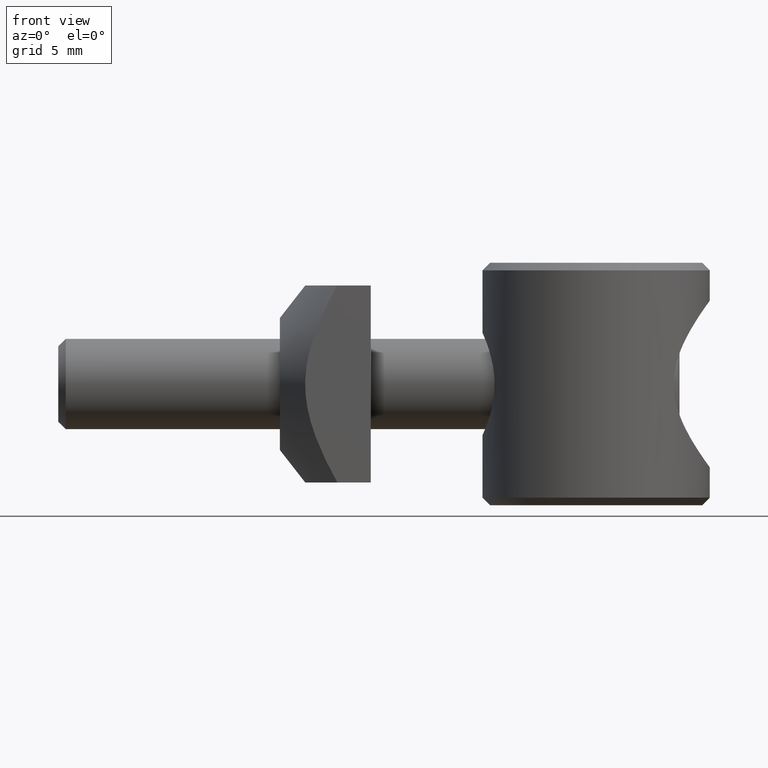
[diagram: clean part render]
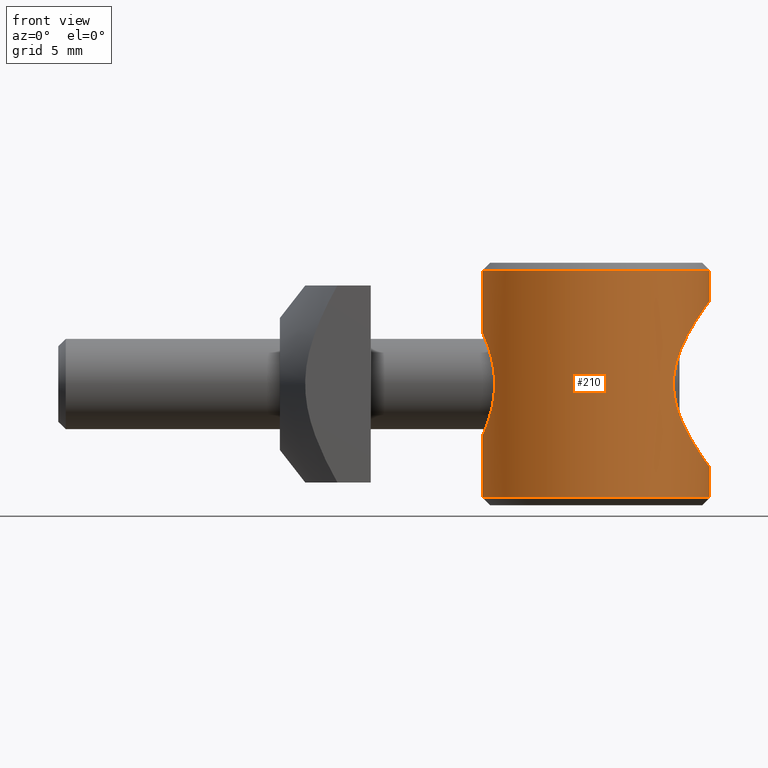
[diagram: same view with one face highlighted and labeled with its STEP entity id]
A machine part, front view. The second image highlights one B-rep face of the part: STEP entity #210.
In plain terms, the highlighted cylindrical surface (bore or boss wall) has radius 7.5 mm, axis along (0, -0, -1).
Its self-contained STEP definition (entity closure, byte-faithful):
#30=CARTESIAN_POINT('',(7.499999999969987,0.0,0.499999999998181));
#31=VERTEX_POINT('',#30);
#38=CARTESIAN_POINT('',(-7.499999999969987,0.0,0.499999999998181));
#39=VERTEX_POINT('',#38);
#40=CARTESIAN_POINT('',(0.0,0.0,0.499999999998181));
#41=DIRECTION('',(0.0,-6.123234E-017,-1.0));
#42=DIRECTION('',(1.0,0.0,0.0));
#43=AXIS2_PLACEMENT_3D('',#40,#41,#42);
#44=CIRCLE('',#43,7.499999999969987);
#45=EDGE_CURVE('',#31,#39,#44,.T.);
#47=CARTESIAN_POINT('',(0.0,0.0,0.499999999998181));
#48=DIRECTION('',(0.0,-6.123234E-017,-1.0));
#49=DIRECTION('',(1.0,0.0,0.0));
#50=AXIS2_PLACEMENT_3D('',#47,#48,#49);
#51=CIRCLE('',#50,7.499999999969987);
#52=EDGE_CURVE('',#39,#31,#51,.T.);
#74=CARTESIAN_POINT('',(0.0,0.0,0.499999999998181));
#75=DIRECTION('',(0.0,-6.123234E-017,-1.0));
#76=DIRECTION('',(1.0,0.0,0.0));
#77=AXIS2_PLACEMENT_3D('',#74,#75,#76);
#78=CYLINDRICAL_SURFACE('',#77,7.499999999969987);
#79=CARTESIAN_POINT('',(7.499999999969987,0.0,2.499999999990450));
#80=VERTEX_POINT('',#79);
#81=CARTESIAN_POINT('',(7.499999999969987,4.538289E-013,0.499999999998181));
#82=DIRECTION('',(0.0,0.0,1.0));
#83=VECTOR('',#82,1.999999999992269);
#84=LINE('',#81,#83);
#85=EDGE_CURVE('',#31,#80,#84,.T.);
#86=ORIENTED_EDGE('',*,*,#85,.T.);
#87=CARTESIAN_POINT('',(7.499999999969987,4.547474E-013,13.499999999945885));
#88=VERTEX_POINT('',#87);
#89=CARTESIAN_POINT('',(7.499999999969987,0.0,13.499999999945885));
#90=CARTESIAN_POINT('',(7.499999999969987,-0.187235908891580,13.499999999945885));
#91=CARTESIAN_POINT('',(7.482318753180607,-0.658062693658849,13.475907831847053));
#92=CARTESIAN_POINT('',(7.383592300483997,-1.401587189841393,13.340808267023021));
#93=CARTESIAN_POINT('',(7.184150381241580,-2.204382105711829,13.062681818257261));
#94=CARTESIAN_POINT('',(6.889814804196703,-3.004844032174333,12.638228145589437));
#95=CARTESIAN_POINT('',(6.503314138706173,-3.769166404371390,12.048509684587316));
#96=CARTESIAN_POINT('',(5.998734376666107,-4.532632487986575,11.193829623452075));
#97=CARTESIAN_POINT('',(5.504999607842365,-5.106869368244134,10.169439394810524));
#98=CARTESIAN_POINT('',(5.163247851778579,-5.441825369808157,9.014727429491359));
#99=CARTESIAN_POINT('',(5.061392866754886,-5.534225111557134,7.925359238446163));
#100=CARTESIAN_POINT('',(5.196070737490118,-5.411412632272004,6.825386722086023));
#101=CARTESIAN_POINT('',(5.559409688521555,-5.048788684413012,5.707295535908088));
#102=CARTESIAN_POINT('',(6.070100531007483,-4.437756150622590,4.673451869731707));
#103=CARTESIAN_POINT('',(6.645278585985579,-3.539782545652543,3.721383316711581));
#104=CARTESIAN_POINT('',(7.142909849373154,-2.417789766112037,2.992261969466199));
#105=CARTESIAN_POINT('',(7.441589650903552,-1.168517132548914,2.579340847030380));
#106=CARTESIAN_POINT('',(7.499999999969987,-0.353388568259561,2.499999999990450));
#107=CARTESIAN_POINT('',(7.499999999969987,0.0,2.499999999990450));
#108=B_SPLINE_CURVE_WITH_KNOTS('',3,(#89,#90,#91,#92,#93,#94,#95,#96,#97,#98,#99,#100,#101,#102,#103,#104,#105,#106,#107),.UNSPECIFIED.,.F.,.U.,(4,1,1,1,1,1,1,1,1,1,1,1,1,1,1,1,4),(0.0,0.562058006759199,1.411747737096331,2.276739218720677,3.169853864779821,4.260053581389174,5.383623289509268,6.913566546391490,8.052062323482849,9.105246721995343,10.175057685871481,11.364022147298819,12.768548674373111,14.065752031374407,15.632801490503576,17.011669284472173,18.074299974627817),.UNSPECIFIED.);
#109=EDGE_CURVE('',#88,#80,#108,.T.);
#110=ORIENTED_EDGE('',*,*,#109,.F.);
#111=CARTESIAN_POINT('',(7.499999999969987,4.547474E-013,15.499999999938154));
#112=VERTEX_POINT('',#111);
#113=CARTESIAN_POINT('',(7.499999999969987,4.546249E-013,13.499999999945885));
#114=DIRECTION('',(0.0,0.0,1.0));
#115=VECTOR('',#114,1.999999999992269);
#116=LINE('',#113,#115);
#117=EDGE_CURVE('',#88,#112,#116,.T.);
#118=ORIENTED_EDGE('',*,*,#117,.T.);
#119=CARTESIAN_POINT('',(-7.499999999969987,4.547474E-013,15.499999999938154));
#120=VERTEX_POINT('',#119);
#121=CARTESIAN_POINT('',(0.0,4.547474E-013,15.499999999938154));
#122=DIRECTION('',(0.0,-6.123234E-017,-1.0));
#123=DIRECTION('',(1.0,0.0,0.0));
#124=AXIS2_PLACEMENT_3D('',#121,#122,#123);
#125=CIRCLE('',#124,7.499999999969987);
#126=EDGE_CURVE('',#112,#120,#125,.T.);
#127=ORIENTED_EDGE('',*,*,#126,.T.);
#128=CARTESIAN_POINT('',(0.0,4.547474E-013,15.499999999938154));
#129=DIRECTION('',(0.0,-6.123234E-017,-1.0));
#130=DIRECTION('',(1.0,0.0,0.0));
#131=AXIS2_PLACEMENT_3D('',#128,#129,#130);
#132=CIRCLE('',#131,7.499999999969987);
#133=EDGE_CURVE('',#120,#112,#132,.T.);
#134=ORIENTED_EDGE('',*,*,#133,.T.);
#135=ORIENTED_EDGE('',*,*,#117,.F.);
#136=CARTESIAN_POINT('',(7.499999999969987,4.547474E-013,2.499999999990450));
#137=CARTESIAN_POINT('',(7.499999999969987,0.353388568260470,2.499999999990450));
#138=CARTESIAN_POINT('',(7.441589650902188,1.168517132550278,2.579340847031290));
#139=CARTESIAN_POINT('',(7.142909849373609,2.417789766114311,2.992261969467108));
#140=CARTESIAN_POINT('',(6.645278585986489,3.539782545653452,3.721383316712945));
#141=CARTESIAN_POINT('',(6.070100531007483,4.437756150623500,4.673451869731707));
#142=CARTESIAN_POINT('',(5.559409688520645,5.048788684413921,5.707295535907633));
#143=CARTESIAN_POINT('',(5.196070737491027,5.411412632272459,6.825386722086932));
#144=CARTESIAN_POINT('',(5.061392866754432,5.534225111557589,7.925359238446617));
#145=CARTESIAN_POINT('',(5.163247851778579,5.441825369808157,9.014727429492723));
#146=CARTESIAN_POINT('',(5.504999607842365,5.106869368244134,10.169439394809160));
#147=CARTESIAN_POINT('',(5.998734376666107,4.532632487987485,11.193829623451620));
#148=CARTESIAN_POINT('',(6.503314138705719,3.769166404371390,12.048509684585497));
#149=CARTESIAN_POINT('',(6.889814804196249,3.004844032174788,12.638228145589437));
#150=CARTESIAN_POINT('',(7.184150381242034,2.204382105712284,13.062681818256806));
#151=CARTESIAN_POINT('',(7.383592300482633,1.401587189841848,13.340808267020748));
#152=CARTESIAN_POINT('',(7.482318753180152,0.658062693659303,13.475907831846598));
#153=CARTESIAN_POINT('',(7.499999999969987,0.187235908892035,13.499999999945885));
#154=CARTESIAN_POINT('',(7.499999999969987,4.547474E-013,13.499999999945885));
#155=B_SPLINE_CURVE_WITH_KNOTS('',3,(#136,#137,#138,#139,#140,#141,#142,#143,#144,#145,#146,#147,#148,#149,#150,#151,#152,#153,#154),.UNSPECIFIED.,.F.,.U.,(4,1,1,1,1,1,1,1,1,1,1,1,1,1,1,1,4),(0.0,1.062630690157268,2.441498484126401,4.008547943254942,5.305751300252759,6.710277827330080,7.899242288757689,8.969053252632898,10.022237651144387,11.160733428236464,12.690676685118545,13.814246393238646,14.904446109847905,15.797560755907053,16.662552237531397,17.512241967868533,18.074299974627731),.UNSPECIFIED.);
#156=EDGE_CURVE('',#80,#88,#155,.T.);
#157=ORIENTED_EDGE('',*,*,#156,.F.);
#158=ORIENTED_EDGE('',*,*,#85,.F.);
#159=ORIENTED_EDGE('',*,*,#52,.F.);
#160=ORIENTED_EDGE('',*,*,#45,.F.);
#161=EDGE_LOOP('',(#86,#110,#118,#127,#134,#135,#157,#158,#159,#160));
#162=FACE_OUTER_BOUND('',#161,.T.);
#163=CARTESIAN_POINT('',(-7.500004034824312,-0.000009830409620,11.375004232024919));
#164=VERTEX_POINT('',#163);
#165=CARTESIAN_POINT('',(-7.499999999969987,0.0,4.624999999981810));
#166=VERTEX_POINT('',#165);
#167=CARTESIAN_POINT('',(-7.500004034824312,-0.000009830409620,11.375004232024919));
#168=CARTESIAN_POINT('',(-7.499996954178084,0.182922617668260,11.374997728981587));
#169=CARTESIAN_POINT('',(-7.483974439159502,0.617732914771559,11.339534224241930));
#170=CARTESIAN_POINT('',(-7.397287023552508,1.312304319171290,11.143773990371756));
#171=CARTESIAN_POINT('',(-7.246232150248034,1.967680013087829,10.775896413706960));
#172=CARTESIAN_POINT('',(-7.059955079850624,2.550914364645450,10.252534419774747));
#173=CARTESIAN_POINT('',(-6.894683089756654,2.959591070215993,9.677083388149185));
#174=CARTESIAN_POINT('',(-6.754124821874939,3.263913988072545,8.959617985196474));
#175=CARTESIAN_POINT('',(-6.682375778411824,3.404908591972344,8.199586775118860));
#176=CARTESIAN_POINT('',(-6.710465094853589,3.350660313681601,7.411477005658981));
#177=CARTESIAN_POINT('',(-6.817499315563964,3.130782303382603,6.666454159739715));
#178=CARTESIAN_POINT('',(-6.984915770263342,2.749049898211069,5.982206497675634));
#179=CARTESIAN_POINT('',(-7.165276072321376,2.239484215650009,5.443482752513319));
#180=CARTESIAN_POINT('',(-7.341004373359738,1.587018722308585,4.987116675941252));
#181=CARTESIAN_POINT('',(-7.468323876882550,0.861311250045674,4.694798965915652));
#182=CARTESIAN_POINT('',(-7.499999999969987,0.258212718835694,4.624999999981810));
#183=CARTESIAN_POINT('',(-7.499999999969987,0.0,4.624999999981810));
#184=B_SPLINE_CURVE_WITH_KNOTS('',3,(#167,#168,#169,#170,#171,#172,#173,#174,#175,#176,#177,#178,#179,#180,#181,#182,#183),.UNSPECIFIED.,.F.,.U.,(4,1,1,1,1,1,1,1,1,1,1,1,1,1,4),(10.750887607616978,11.299702742959315,12.055199760812989,12.915942652718872,13.581101343585223,14.461235249042391,15.073666456791329,15.946740671227875,16.766791629261977,17.423042190743306,18.286433819751505,19.151540690839255,19.695860525094588,20.725134766499117,21.501775215233955),.UNSPECIFIED.);
#185=EDGE_CURVE('',#164,#166,#184,.T.);
#186=ORIENTED_EDGE('',*,*,#185,.F.);
#187=CARTESIAN_POINT('',(-7.499999999969987,0.0,4.624999999981810));
#188=CARTESIAN_POINT('',(-7.499999999969987,-0.191441366937852,4.624999999981810));
#189=CARTESIAN_POINT('',(-7.482803262329981,-0.636614330367138,4.663038677968416));
#190=CARTESIAN_POINT('',(-7.398041153126087,-1.295560530432795,4.854734312496476));
#191=CARTESIAN_POINT('',(-7.247595695749624,-1.966267858605079,5.221380110364407));
#192=CARTESIAN_POINT('',(-7.060760735828808,-2.550575625800775,5.740369681458560));
#193=CARTESIAN_POINT('',(-6.883633086062673,-2.985152609438046,6.368759925857830));
#194=CARTESIAN_POINT('',(-6.749347175757066,-3.273230221682752,7.073896885804516));
#195=CARTESIAN_POINT('',(-6.684460526063049,-3.400904615686159,7.815003195248664));
#196=CARTESIAN_POINT('',(-6.709157930019956,-3.353032118607189,8.562746192392751));
#197=CARTESIAN_POINT('',(-6.804449308249332,-3.158148884731872,9.255887208667900));
#198=CARTESIAN_POINT('',(-6.953250770222439,-2.823277604710711,9.900908838696978));
#199=CARTESIAN_POINT('',(-7.124471659443771,-2.364244219045304,10.442082346459301));
#200=CARTESIAN_POINT('',(-7.303036751742184,-1.750897082495158,10.920041423029488));
#201=CARTESIAN_POINT('',(-7.448984985723655,-1.013420323685750,11.262497396940034));
#202=CARTESIAN_POINT('',(-7.497509413026310,-0.368384364777568,11.369460870009346));
#203=CARTESIAN_POINT('',(-7.500005494013519,-0.037708798148709,11.375005572180935));
#204=CARTESIAN_POINT('',(-7.500004034824312,-0.000009830409620,11.375004232024919));
#205=B_SPLINE_CURVE_WITH_KNOTS('',3,(#187,#188,#189,#190,#191,#192,#193,#194,#195,#196,#197,#198,#199,#200,#201,#202,#203,#204),.UNSPECIFIED.,.F.,.U.,(4,1,1,1,1,1,1,1,1,1,1,1,1,1,1,4),(0.0,0.575144356157960,1.334137133689136,2.060392775512152,2.898695223727640,3.728164465776419,4.396973427001568,5.207158237659382,5.972825102623094,6.627788808917825,7.374321062611234,8.185013026194950,8.803647780547465,9.758803507197458,10.637787037983829,10.750887607616978),.UNSPECIFIED.);
#206=EDGE_CURVE('',#166,#164,#205,.T.);
#207=ORIENTED_EDGE('',*,*,#206,.F.);
#208=EDGE_LOOP('',(#186,#207));
#209=FACE_BOUND('',#208,.T.);
#210=ADVANCED_FACE('',(#162,#209),#78,.T.);